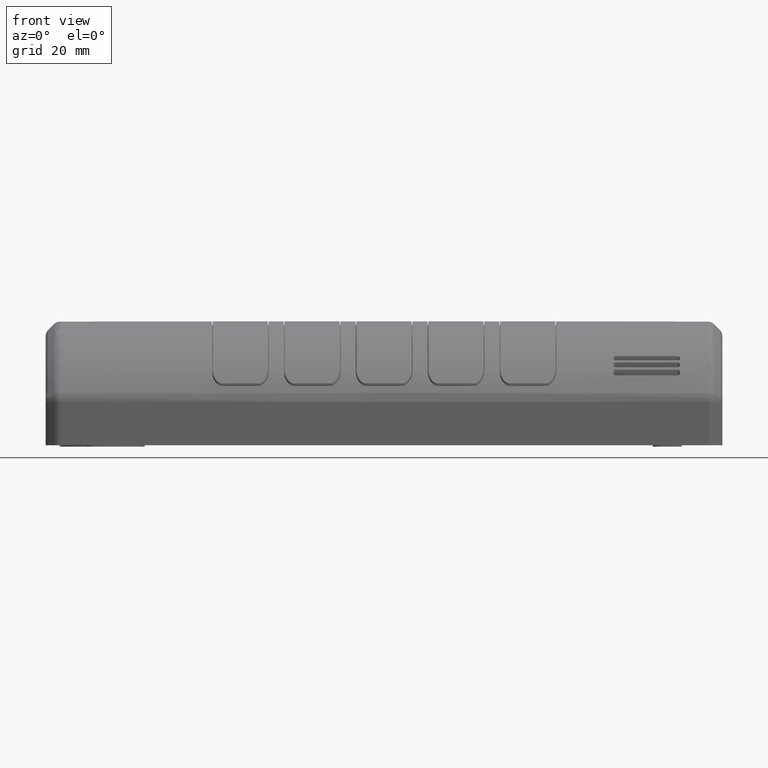
[diagram: clean part render]
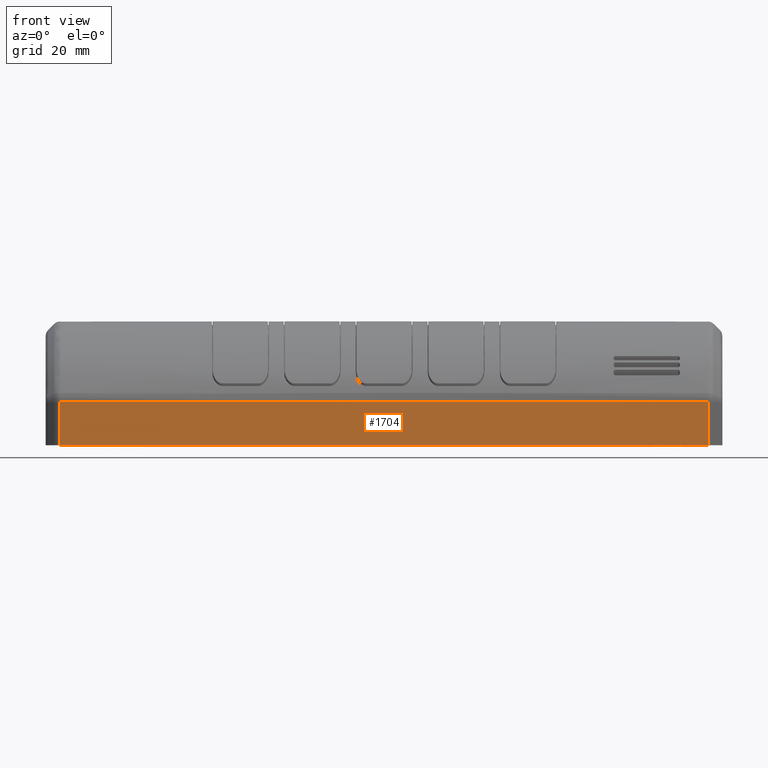
[diagram: same view with one face highlighted and labeled with its STEP entity id]
A machine part, front view. The second image highlights one B-rep face of the part: STEP entity #1704.
In plain terms, the highlighted planar face has unit normal (0, -0.9994, 0.0349).
Its self-contained STEP definition (entity closure, byte-faithful):
#1198=PLANE('',#12817);
#1704=ADVANCED_FACE('',(#2470),#1198,.T.);
#2470=FACE_OUTER_BOUND('',#3168,.T.);
#3168=EDGE_LOOP('',(#5254,#5255,#5256,#5257,#5258,#5259,#5260,#5261));
#5254=ORIENTED_EDGE('',*,*,#10010,.F.);
#5255=ORIENTED_EDGE('',*,*,#10011,.F.);
#5256=ORIENTED_EDGE('',*,*,#10012,.F.);
#5257=ORIENTED_EDGE('',*,*,#10013,.T.);
#5258=ORIENTED_EDGE('',*,*,#9975,.T.);
#5259=ORIENTED_EDGE('',*,*,#9974,.T.);
#5260=ORIENTED_EDGE('',*,*,#9973,.T.);
#5261=ORIENTED_EDGE('',*,*,#10014,.T.);
#8818=VERTEX_POINT('',#16108);
#8819=VERTEX_POINT('',#16113);
#8820=VERTEX_POINT('',#16118);
#8821=VERTEX_POINT('',#16123);
#8848=VERTEX_POINT('',#16309);
#8849=VERTEX_POINT('',#16310);
#8850=VERTEX_POINT('',#16315);
#8851=VERTEX_POINT('',#16320);
#9973=EDGE_CURVE('',#8819,#8818,#11733,.T.);
#9974=EDGE_CURVE('',#8820,#8819,#11734,.T.);
#9975=EDGE_CURVE('',#8821,#8820,#11735,.T.);
#10010=EDGE_CURVE('',#8848,#8849,#11766,.T.);
#10011=EDGE_CURVE('',#8850,#8848,#11767,.T.);
#10012=EDGE_CURVE('',#8851,#8850,#11768,.T.);
#10013=EDGE_CURVE('',#8851,#8821,#11769,.T.);
#10014=EDGE_CURVE('',#8818,#8849,#11770,.T.);
#11733=B_SPLINE_CURVE_WITH_KNOTS('',3,(#16109,#16110,#16111,#16112),.UNSPECIFIED.,
 .F.,.F.,(4,4),(0.,1.),.UNSPECIFIED.);
#11734=B_SPLINE_CURVE_WITH_KNOTS('',3,(#16114,#16115,#16116,#16117),.UNSPECIFIED.,
 .F.,.F.,(4,4),(0.,1.),.UNSPECIFIED.);
#11735=B_SPLINE_CURVE_WITH_KNOTS('',3,(#16119,#16120,#16121,#16122),.UNSPECIFIED.,
 .F.,.F.,(4,4),(0.,1.),.UNSPECIFIED.);
#11766=B_SPLINE_CURVE_WITH_KNOTS('',3,(#16305,#16306,#16307,#16308),.UNSPECIFIED.,
 .F.,.F.,(4,4),(0.,1.),.UNSPECIFIED.);
#11767=B_SPLINE_CURVE_WITH_KNOTS('',3,(#16311,#16312,#16313,#16314),.UNSPECIFIED.,
 .F.,.F.,(4,4),(0.,1.),.UNSPECIFIED.);
#11768=B_SPLINE_CURVE_WITH_KNOTS('',3,(#16316,#16317,#16318,#16319),.UNSPECIFIED.,
 .F.,.F.,(4,4),(0.,1.),.UNSPECIFIED.);
#11769=B_SPLINE_CURVE_WITH_KNOTS('',3,(#16321,#16322,#16323,#16324),.UNSPECIFIED.,
 .F.,.F.,(4,4),(0.,1.),.UNSPECIFIED.);
#11770=B_SPLINE_CURVE_WITH_KNOTS('',3,(#16325,#16326,#16327,#16328),.UNSPECIFIED.,
 .F.,.F.,(4,4),(0.,1.),.UNSPECIFIED.);
#12817=AXIS2_PLACEMENT_3D('',#16329,#13615,#13616);
#13615=DIRECTION('',(0.,-0.999390827019096,0.034899496702501));
#13616=DIRECTION('',(0.,-0.034899496702501,-0.999390827019096));
#16108=CARTESIAN_POINT('',(181.357359312883,-45.0000000000031,1.25000000000001));
#16109=CARTESIAN_POINT('',(76.8000000000025,-45.0000000000031,1.25));
#16110=CARTESIAN_POINT('',(111.652453104296,-45.0000000000031,1.25));
#16111=CARTESIAN_POINT('',(146.50490620859,-45.0000000000031,1.25));
#16112=CARTESIAN_POINT('',(181.357359312883,-45.0000000000031,1.25));
#16113=CARTESIAN_POINT('',(76.8000000000025,-45.0000000000031,1.25));
#16114=CARTESIAN_POINT('',(24.6000000000025,-45.0000000000031,1.25));
#16115=CARTESIAN_POINT('',(42.0000000000025,-45.0000000000031,1.25));
#16116=CARTESIAN_POINT('',(59.4000000000025,-45.0000000000031,1.25));
#16117=CARTESIAN_POINT('',(76.8000000000025,-45.0000000000031,1.25));
#16118=CARTESIAN_POINT('',(24.6000000000025,-45.0000000000031,1.25));
#16119=CARTESIAN_POINT('',(-53.8573593128783,-45.0000000000031,1.25));
#16120=CARTESIAN_POINT('',(-27.7049062085847,-45.0000000000031,1.25));
#16121=CARTESIAN_POINT('',(-1.55245310429113,-45.0000000000031,1.25));
#16122=CARTESIAN_POINT('',(24.6000000000025,-45.0000000000031,1.25));
#16123=CARTESIAN_POINT('',(-53.8573593128782,-45.0000000000031,1.25000000000001));
#16305=CARTESIAN_POINT('',(76.8000000000025,-44.4511970019319,16.9656616551899));
#16306=CARTESIAN_POINT('',(111.652453104296,-44.4511970019319,16.9656616551899));
#16307=CARTESIAN_POINT('',(146.50490620859,-44.4511970019319,16.9656616551899));
#16308=CARTESIAN_POINT('',(181.357359312883,-44.4511970019319,16.9656616551899));
#16309=CARTESIAN_POINT('',(76.8000000000025,-44.4511970019319,16.9656616551899));
#16310=CARTESIAN_POINT('',(181.357359312883,-44.4511970019319,16.9656616551899));
#16311=CARTESIAN_POINT('',(24.6000000000025,-44.4511970019319,16.9656616551899));
#16312=CARTESIAN_POINT('',(42.0000000000025,-44.4511970019319,16.9656616551899));
#16313=CARTESIAN_POINT('',(59.4000000000025,-44.4511970019319,16.9656616551899));
#16314=CARTESIAN_POINT('',(76.8000000000025,-44.4511970019319,16.9656616551899));
#16315=CARTESIAN_POINT('',(24.6000000000025,-44.4511970019319,16.9656616551899));
#16316=CARTESIAN_POINT('',(-53.8573593128783,-44.4511970019319,16.9656616551899));
#16317=CARTESIAN_POINT('',(-27.7049062085847,-44.4511970019319,16.9656616551899));
#16318=CARTESIAN_POINT('',(-1.55245310429113,-44.4511970019319,16.9656616551899));
#16319=CARTESIAN_POINT('',(24.6000000000025,-44.4511970019319,16.9656616551899));
#16320=CARTESIAN_POINT('',(-53.8573593128782,-44.4511970019319,16.9656616551899));
#16321=CARTESIAN_POINT('',(-53.8573593128783,-44.4511970019319,16.9656616551899));
#16322=CARTESIAN_POINT('',(-53.8573593128783,-44.6341313346223,11.7271077701266));
#16323=CARTESIAN_POINT('',(-53.8573593128783,-44.8170656673127,6.48855388506332));
#16324=CARTESIAN_POINT('',(-53.8573593128783,-45.0000000000031,1.25));
#16325=CARTESIAN_POINT('',(181.357359312883,-45.0000000000031,1.25));
#16326=CARTESIAN_POINT('',(181.357359312883,-44.8170656673127,6.48855388506332));
#16327=CARTESIAN_POINT('',(181.357359312883,-44.6341313346223,11.7271077701266));
#16328=CARTESIAN_POINT('',(181.357359312883,-44.4511970019319,16.9656616551899));
#16329=CARTESIAN_POINT('',(158.000000000002,-44.3925318489314,18.6456118353939));